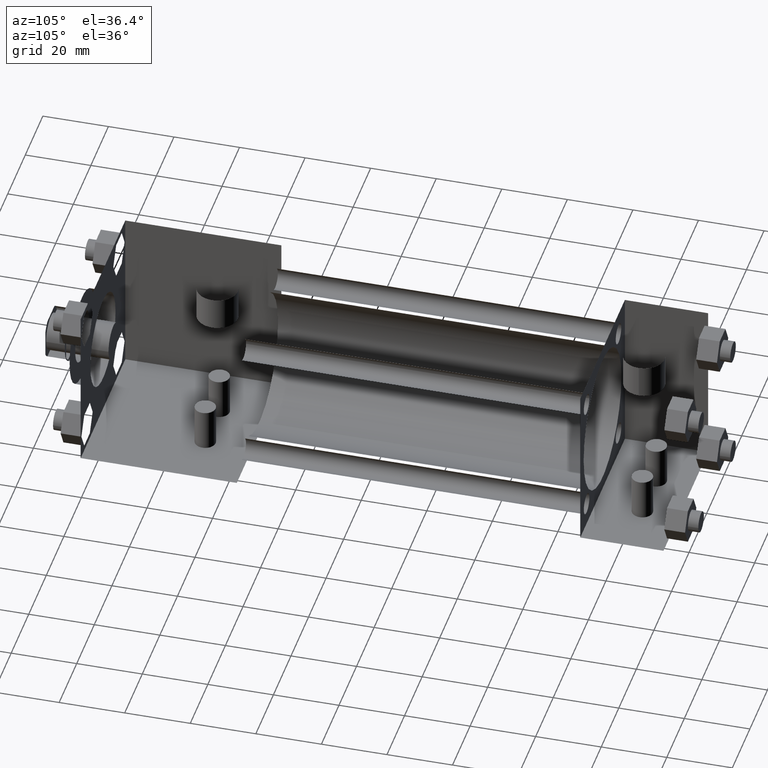
[diagram: clean part render]
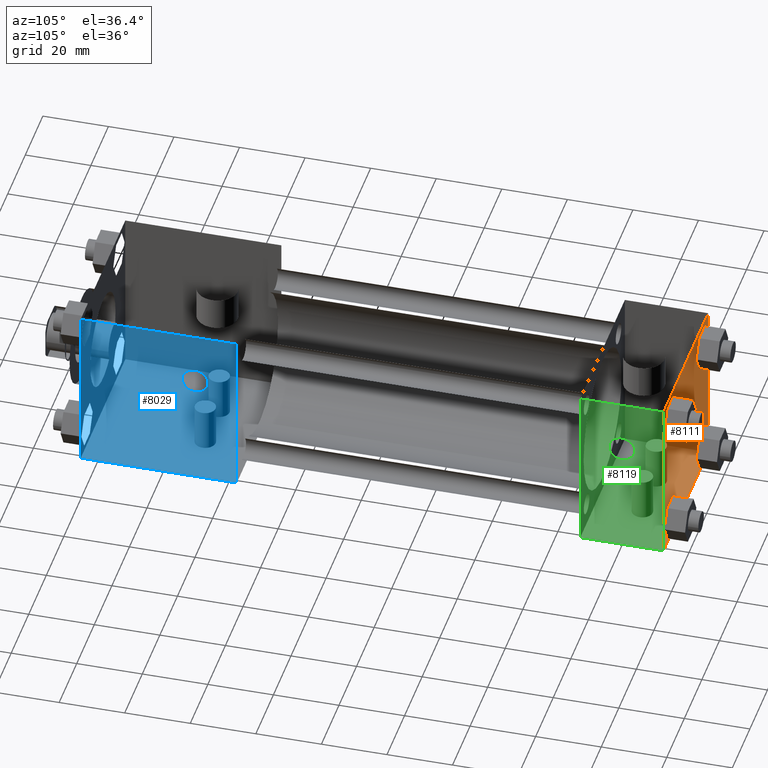
[diagram: same view with three faces highlighted in distinct colors, each labeled with its STEP entity id]
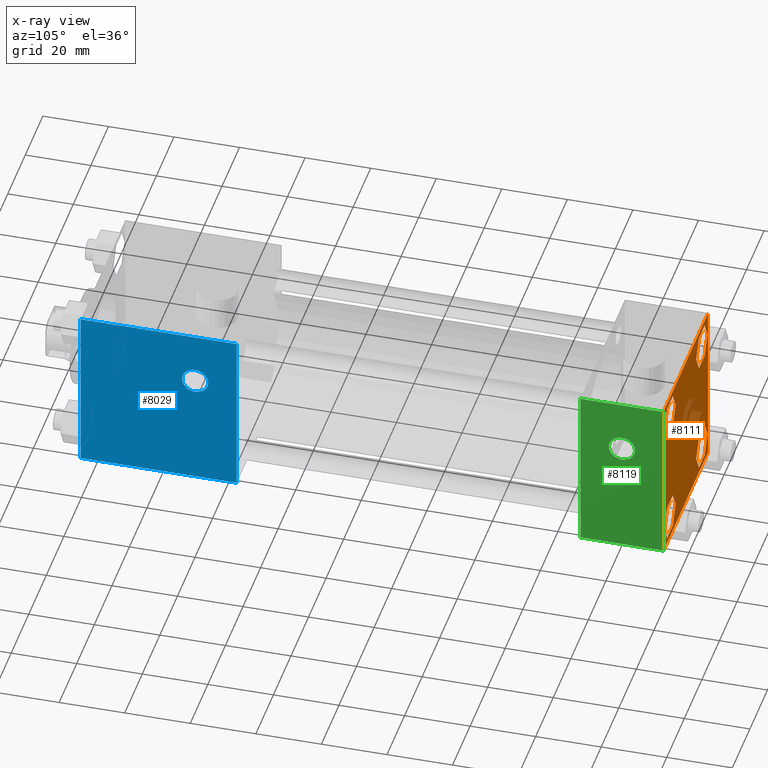
[diagram: x-ray of the same camera — body ghosted, the three highlighted faces saturated]
A machine part, auxiliary view with three faces highlighted in distinct colors.
The next image is the same camera in x-ray (body ghosted, the three faces saturated) — at least one of them is partly hidden behind the body in this view.
Their STEP definitions:

[orange] entity #8111 — the highlighted planar face has unit normal (0, -1, 0).
#4269=FACE_OUTER_BOUND('',#4274,.T.);
#4270=FACE_BOUND('',#4275,.T.);
#4271=FACE_BOUND('',#4276,.T.);
#4272=FACE_BOUND('',#4277,.T.);
#4273=FACE_BOUND('',#4278,.T.);
#4274=EDGE_LOOP('',(#4279,#4280,#4281,#4282,#4283,#4284));
#4275=EDGE_LOOP('',(#4327,#4328,#4329,#4330,#4331,#4332));
#4276=EDGE_LOOP('',(#4375,#4376,#4377,#4378,#4379,#4380));
#4277=EDGE_LOOP('',(#4423,#4424,#4425,#4426));
#4278=EDGE_LOOP('',(#4455,#4456,#4457,#4458,#4459,#4460));
#4279=ORIENTED_EDGE('',*,*,#4285,.F.);
#4280=ORIENTED_EDGE('',*,*,#4294,.F.);
#4281=ORIENTED_EDGE('',*,*,#4301,.F.);
#4282=ORIENTED_EDGE('',*,*,#4308,.F.);
#4283=ORIENTED_EDGE('',*,*,#4315,.F.);
#4284=ORIENTED_EDGE('',*,*,#4322,.F.);
#4285=EDGE_CURVE('',#4290,#4291,#4286,.T.);
#4286=LINE('',#4287,#4288);
#4287=CARTESIAN_POINT('',(1.495309347E+001,1.936750000E+002,2.371724574E+001));
#4288=VECTOR('',#4289,1.0E+000);
#4289=DIRECTION('',(4.9999999836129E-001,0.0E+000,8.66025404730548E-001));
#4290=VERTEX_POINT('',#4292);
#4291=VERTEX_POINT('',#4293);
#4292=CARTESIAN_POINT('',(1.174519677E+001,1.936750000E+002,1.816100000E+001));
#4293=CARTESIAN_POINT('',(1.495309347E+001,1.936750000E+002,2.371724574E+001));
#4294=EDGE_CURVE('',#4299,#4290,#4295,.T.);
#4295=LINE('',#4296,#4297);
#4296=CARTESIAN_POINT('',(1.495309347E+001,1.936750000E+002,1.260475426E+001));
#4297=VECTOR('',#4298,1.0E+000);
#4298=DIRECTION('',(-4.99999998361291E-001,0.0E+000,
   8.66025404730548E-001));
#4299=VERTEX_POINT('',#4300);
#4300=CARTESIAN_POINT('',(1.495309347E+001,1.936750000E+002,1.260475426E+001));
#4301=EDGE_CURVE('',#4306,#4299,#4302,.T.);
#4302=LINE('',#4303,#4304);
#4303=CARTESIAN_POINT('',(1.495309347E+001,1.936750000E+002,1.260475426E+001));
#4304=VECTOR('',#4305,1.0E+000);
#4305=DIRECTION('',(-1.0E+000,0.0E+000,0.0E+000));
#4306=VERTEX_POINT('',#4307);
#4307=CARTESIAN_POINT('',(2.136890653E+001,1.936750000E+002,1.260475426E+001));
#4308=EDGE_CURVE('',#4313,#4306,#4309,.T.);
#4309=LINE('',#4310,#4311);
#4310=CARTESIAN_POINT('',(2.457680323E+001,1.936750000E+002,1.816100000E+001));
#4311=VECTOR('',#4312,1.0E+000);
#4312=DIRECTION('',(-4.9999999836129E-001,0.0E+000,
   -8.66025404730549E-001));
#4313=VERTEX_POINT('',#4314);
#4314=CARTESIAN_POINT('',(2.457680323E+001,1.936750000E+002,1.816100000E+001));
#4315=EDGE_CURVE('',#4320,#4313,#4316,.T.);
#4316=LINE('',#4317,#4318);
#4317=CARTESIAN_POINT('',(2.457680323E+001,1.936750000E+002,1.816100000E+001));
#4318=VECTOR('',#4319,1.0E+000);
#4319=DIRECTION('',(4.9999999836129E-001,0.0E+000,-8.66025404730548E-001));
#4320=VERTEX_POINT('',#4321);
#4321=CARTESIAN_POINT('',(2.136890653E+001,1.936750000E+002,2.371724574E+001));
#4322=EDGE_CURVE('',#4291,#4320,#4323,.T.);
#4323=LINE('',#4324,#4325);
#4324=CARTESIAN_POINT('',(1.495309347E+001,1.936750000E+002,2.371724574E+001));
#4325=VECTOR('',#4326,1.0E+000);
#4326=DIRECTION('',(1.0E+000,0.0E+000,0.0E+000));
#4327=ORIENTED_EDGE('',*,*,#4333,.F.);
#4328=ORIENTED_EDGE('',*,*,#4342,.F.);
#4329=ORIENTED_EDGE('',*,*,#4349,.F.);
#4330=ORIENTED_EDGE('',*,*,#4356,.F.);
#4331=ORIENTED_EDGE('',*,*,#4363,.F.);
#4332=ORIENTED_EDGE('',*,*,#4370,.F.);
#4333=EDGE_CURVE('',#4338,#4339,#4334,.T.);
#4334=LINE('',#4335,#4336);
#4335=CARTESIAN_POINT('',(-2.136890653E+001,1.936750000E+002,2.371724574E+001));
#4336=VECTOR('',#4337,1.0E+000);
#4337=DIRECTION('',(4.9999999836129E-001,0.0E+000,8.66025404730548E-001));
#4338=VERTEX_POINT('',#4340);
#4339=VERTEX_POINT('',#4341);
#4340=CARTESIAN_POINT('',(-2.457680323E+001,1.936750000E+002,1.816100000E+001));
#4341=CARTESIAN_POINT('',(-2.136890653E+001,1.936750000E+002,2.371724574E+001));
#4342=EDGE_CURVE('',#4347,#4338,#4343,.T.);
#4343=LINE('',#4344,#4345);
#4344=CARTESIAN_POINT('',(-2.136890653E+001,1.936750000E+002,1.260475426E+001));
#4345=VECTOR('',#4346,1.0E+000);
#4346=DIRECTION('',(-4.99999998361291E-001,0.0E+000,
   8.66025404730548E-001));
#4347=VERTEX_POINT('',#4348);
#4348=CARTESIAN_POINT('',(-2.136890653E+001,1.936750000E+002,1.260475426E+001));
#4349=EDGE_CURVE('',#4354,#4347,#4350,.T.);
#4350=LINE('',#4351,#4352);
#4351=CARTESIAN_POINT('',(-2.136890653E+001,1.936750000E+002,1.260475426E+001));
#4352=VECTOR('',#4353,1.0E+000);
#4353=DIRECTION('',(-1.0E+000,0.0E+000,0.0E+000));
#4354=VERTEX_POINT('',#4355);
#4355=CARTESIAN_POINT('',(-1.495309347E+001,1.936750000E+002,1.260475426E+001));
#4356=EDGE_CURVE('',#4361,#4354,#4357,.T.);
#4357=LINE('',#4358,#4359);
#4358=CARTESIAN_POINT('',(-1.174519677E+001,1.936750000E+002,1.816100000E+001));
#4359=VECTOR('',#4360,1.0E+000);
#4360=DIRECTION('',(-4.9999999836129E-001,0.0E+000,
   -8.66025404730549E-001));
#4361=VERTEX_POINT('',#4362);
#4362=CARTESIAN_POINT('',(-1.174519677E+001,1.936750000E+002,1.816100000E+001));
#4363=EDGE_CURVE('',#4368,#4361,#4364,.T.);
#4364=LINE('',#4365,#4366);
#4365=CARTESIAN_POINT('',(-1.174519677E+001,1.936750000E+002,1.816100000E+001));
#4366=VECTOR('',#4367,1.0E+000);
#4367=DIRECTION('',(4.9999999836129E-001,0.0E+000,-8.66025404730548E-001));
#4368=VERTEX_POINT('',#4369);
#4369=CARTESIAN_POINT('',(-1.495309347E+001,1.936750000E+002,2.371724574E+001));
#4370=EDGE_CURVE('',#4339,#4368,#4371,.T.);
#4371=LINE('',#4372,#4373);
#4372=CARTESIAN_POINT('',(-2.136890653E+001,1.936750000E+002,2.371724574E+001));
#4373=VECTOR('',#4374,1.0E+000);
#4374=DIRECTION('',(1.0E+000,0.0E+000,0.0E+000));
#4375=ORIENTED_EDGE('',*,*,#4381,.F.);
#4376=ORIENTED_EDGE('',*,*,#4390,.F.);
#4377=ORIENTED_EDGE('',*,*,#4397,.F.);
#4378=ORIENTED_EDGE('',*,*,#4404,.F.);
#4379=ORIENTED_EDGE('',*,*,#4411,.F.);
#4380=ORIENTED_EDGE('',*,*,#4418,.F.);
#4381=EDGE_CURVE('',#4386,#4387,#4382,.T.);
#4382=LINE('',#4383,#4384);
#4383=CARTESIAN_POINT('',(-2.136890653E+001,1.936750000E+002,-1.260475426E+001));
#4384=VECTOR('',#4385,1.0E+000);
#4385=DIRECTION('',(4.9999999836129E-001,0.0E+000,8.66025404730549E-001));
#4386=VERTEX_POINT('',#4388);
#4387=VERTEX_POINT('',#4389);
#4388=CARTESIAN_POINT('',(-2.457680323E+001,1.936750000E+002,-1.816100000E+001));
#4389=CARTESIAN_POINT('',(-2.136890653E+001,1.936750000E+002,-1.260475426E+001));
#4390=EDGE_CURVE('',#4395,#4386,#4391,.T.);
#4391=LINE('',#4392,#4393);
#4392=CARTESIAN_POINT('',(-2.136890653E+001,1.936750000E+002,-2.371724574E+001));
#4393=VECTOR('',#4394,1.0E+000);
#4394=DIRECTION('',(-4.99999998361291E-001,0.0E+000,
   8.66025404730548E-001));
#4395=VERTEX_POINT('',#4396);
#4396=CARTESIAN_POINT('',(-2.136890653E+001,1.936750000E+002,-2.371724574E+001));
#4397=EDGE_CURVE('',#4402,#4395,#4398,.T.);
#4398=LINE('',#4399,#4400);
#4399=CARTESIAN_POINT('',(-2.136890653E+001,1.936750000E+002,-2.371724574E+001));
#4400=VECTOR('',#4401,1.0E+000);
#4401=DIRECTION('',(-1.0E+000,0.0E+000,0.0E+000));
#4402=VERTEX_POINT('',#4403);
#4403=CARTESIAN_POINT('',(-1.495309347E+001,1.936750000E+002,-2.371724574E+001));
#4404=EDGE_CURVE('',#4409,#4402,#4405,.T.);
#4405=LINE('',#4406,#4407);
#4406=CARTESIAN_POINT('',(-1.174519677E+001,1.936750000E+002,-1.816100000E+001));
#4407=VECTOR('',#4408,1.0E+000);
#4408=DIRECTION('',(-4.99999998361289E-001,0.0E+000,
   -8.66025404730549E-001));
#4409=VERTEX_POINT('',#4410);
#4410=CARTESIAN_POINT('',(-1.174519677E+001,1.936750000E+002,-1.816100000E+001));
#4411=EDGE_CURVE('',#4416,#4409,#4412,.T.);
#4412=LINE('',#4413,#4414);
#4413=CARTESIAN_POINT('',(-1.174519677E+001,1.936750000E+002,-1.816100000E+001));
#4414=VECTOR('',#4415,1.0E+000);
#4415=DIRECTION('',(4.9999999836129E-001,0.0E+000,-8.66025404730548E-001));
#4416=VERTEX_POINT('',#4417);
#4417=CARTESIAN_POINT('',(-1.495309347E+001,1.936750000E+002,-1.260475426E+001));
#4418=EDGE_CURVE('',#4387,#4416,#4419,.T.);
#4419=LINE('',#4420,#4421);
#4420=CARTESIAN_POINT('',(-2.136890653E+001,1.936750000E+002,-1.260475426E+001));
#4421=VECTOR('',#4422,1.0E+000);
#4422=DIRECTION('',(1.0E+000,0.0E+000,0.0E+000));
#4423=ORIENTED_EDGE('',*,*,#4427,.F.);
#4424=ORIENTED_EDGE('',*,*,#4436,.T.);
#4425=ORIENTED_EDGE('',*,*,#4443,.F.);
#4426=ORIENTED_EDGE('',*,*,#4450,.F.);
#4427=EDGE_CURVE('',#4432,#4433,#4428,.T.);
#4428=LINE('',#4429,#4430);
#4429=CARTESIAN_POINT('',(2.540000000E+001,1.936750000E+002,-2.540000000E+001));
#4430=VECTOR('',#4431,1.0E+000);
#4431=DIRECTION('',(0.0E+000,0.0E+000,1.0E+000));
#4432=VERTEX_POINT('',#4434);
#4433=VERTEX_POINT('',#4435);
#4434=CARTESIAN_POINT('',(2.540000000E+001,1.936750000E+002,-2.540000000E+001));
#4435=CARTESIAN_POINT('',(2.540000000E+001,1.936750000E+002,2.540000000E+001));
#4436=EDGE_CURVE('',#4432,#4441,#4437,.T.);
#4437=LINE('',#4438,#4439);
#4438=CARTESIAN_POINT('',(2.540000000E+001,1.936750000E+002,-2.540000000E+001));
#4439=VECTOR('',#4440,1.0E+000);
#4440=DIRECTION('',(-1.0E+000,0.0E+000,0.0E+000));
#4441=VERTEX_POINT('',#4442);
#4442=CARTESIAN_POINT('',(-2.540000000E+001,1.936750000E+002,-2.540000000E+001));
#4443=EDGE_CURVE('',#4448,#4441,#4444,.T.);
#4444=LINE('',#4445,#4446);
#4445=CARTESIAN_POINT('',(-2.540000000E+001,1.936750000E+002,2.540000000E+001));
#4446=VECTOR('',#4447,1.0E+000);
#4447=DIRECTION('',(0.0E+000,0.0E+000,-1.0E+000));
#4448=VERTEX_POINT('',#4449);
#4449=CARTESIAN_POINT('',(-2.540000000E+001,1.936750000E+002,2.540000000E+001));
#4450=EDGE_CURVE('',#4433,#4448,#4451,.T.);
#4451=LINE('',#4452,#4453);
#4452=CARTESIAN_POINT('',(2.540000000E+001,1.936750000E+002,2.540000000E+001));
#4453=VECTOR('',#4454,1.0E+000);
#4454=DIRECTION('',(-1.0E+000,0.0E+000,0.0E+000));
#4455=ORIENTED_EDGE('',*,*,#4461,.F.);
#4456=ORIENTED_EDGE('',*,*,#4470,.F.);
#4457=ORIENTED_EDGE('',*,*,#4477,.F.);
#4458=ORIENTED_EDGE('',*,*,#4484,.F.);
#4459=ORIENTED_EDGE('',*,*,#4491,.F.);
#4460=ORIENTED_EDGE('',*,*,#4498,.F.);
#4461=EDGE_CURVE('',#4466,#4467,#4462,.T.);
#4462=LINE('',#4463,#4464);
#4463=CARTESIAN_POINT('',(2.136890653E+001,1.936750000E+002,-2.371724574E+001));
#4464=VECTOR('',#4465,1.0E+000);
#4465=DIRECTION('',(-4.9999999836129E-001,0.0E+000,
   -8.66025404730549E-001));
#4466=VERTEX_POINT('',#4468);
#4467=VERTEX_POINT('',#4469);
#4468=CARTESIAN_POINT('',(2.457680323E+001,1.936750000E+002,-1.816100000E+001));
#4469=CARTESIAN_POINT('',(2.136890653E+001,1.936750000E+002,-2.371724574E+001));
#4470=EDGE_CURVE('',#4475,#4466,#4471,.T.);
#4471=LINE('',#4472,#4473);
#4472=CARTESIAN_POINT('',(2.136890653E+001,1.936750000E+002,-1.260475426E+001));
#4473=VECTOR('',#4474,1.0E+000);
#4474=DIRECTION('',(4.99999998361291E-001,0.0E+000,
   -8.66025404730548E-001));
#4475=VERTEX_POINT('',#4476);
#4476=CARTESIAN_POINT('',(2.136890653E+001,1.936750000E+002,-1.260475426E+001));
#4477=EDGE_CURVE('',#4482,#4475,#4478,.T.);
#4478=LINE('',#4479,#4480);
#4479=CARTESIAN_POINT('',(2.136890653E+001,1.936750000E+002,-1.260475426E+001));
#4480=VECTOR('',#4481,1.0E+000);
#4481=DIRECTION('',(1.0E+000,0.0E+000,0.0E+000));
#4482=VERTEX_POINT('',#4483);
#4483=CARTESIAN_POINT('',(1.495309347E+001,1.936750000E+002,-1.260475426E+001));
#4484=EDGE_CURVE('',#4489,#4482,#4485,.T.);
#4485=LINE('',#4486,#4487);
#4486=CARTESIAN_POINT('',(1.174519677E+001,1.936750000E+002,-1.816100000E+001));
#4487=VECTOR('',#4488,1.0E+000);
#4488=DIRECTION('',(4.99999998361289E-001,0.0E+000,8.66025404730549E-001));
#4489=VERTEX_POINT('',#4490);
#4490=CARTESIAN_POINT('',(1.174519677E+001,1.936750000E+002,-1.816100000E+001));
#4491=EDGE_CURVE('',#4496,#4489,#4492,.T.);
#4492=LINE('',#4493,#4494);
#4493=CARTESIAN_POINT('',(1.174519677E+001,1.936750000E+002,-1.816100000E+001));
#4494=VECTOR('',#4495,1.0E+000);
#4495=DIRECTION('',(-4.9999999836129E-001,0.0E+000,8.66025404730548E-001));
#4496=VERTEX_POINT('',#4497);
#4497=CARTESIAN_POINT('',(1.495309347E+001,1.936750000E+002,-2.371724574E+001));
#4498=EDGE_CURVE('',#4467,#4496,#4499,.T.);
#4499=LINE('',#4500,#4501);
#4500=CARTESIAN_POINT('',(2.136890653E+001,1.936750000E+002,-2.371724574E+001));
#4501=VECTOR('',#4502,1.0E+000);
#4502=DIRECTION('',(-1.0E+000,0.0E+000,0.0E+000));
#4503=PLANE('',#4504);
#4504=AXIS2_PLACEMENT_3D('',#4505,#4506,#4507);
#4505=CARTESIAN_POINT('',(2.540000000E+001,1.936750000E+002,-2.540000000E+001));
#4506=DIRECTION('',(0.0E+000,-1.0E+000,0.0E+000));
#4507=DIRECTION('',(0.0E+000,0.0E+000,-1.0E+000));
#8111=ADVANCED_FACE('',(#4269,#4270,#4271,#4272,#4273),#4503,.F.);

[blue] entity #8029 — the highlighted planar face has unit normal (1, 0, 0).
#1776=EDGE_CURVE('',#1782,#1782,#1777,.T.);
#1777=CIRCLE('',#1778,3.968750000E+000);
#1778=AXIS2_PLACEMENT_3D('',#1779,#1780,#1781);
#1779=CARTESIAN_POINT('',(2.540000000E+001,5.080000000E+001,9.525000000E+000));
#1780=DIRECTION('',(-1.0E+000,0.0E+000,0.0E+000));
#1781=DIRECTION('',(0.0E+000,0.0E+000,-1.0E+000));
#1782=VERTEX_POINT('',#1783);
#1783=CARTESIAN_POINT('',(2.540000000E+001,5.080000000E+001,5.556250000E+000));
#1958=VERTEX_POINT('',#1959);
#1959=CARTESIAN_POINT('',(2.540000000E+001,1.587500000E+001,2.540000000E+001));
#1960=EDGE_CURVE('',#1965,#1958,#1961,.T.);
#1961=LINE('',#1962,#1963);
#1962=CARTESIAN_POINT('',(2.540000000E+001,6.350000000E+001,2.540000000E+001));
#1963=VECTOR('',#1964,1.0E+000);
#1964=DIRECTION('',(0.0E+000,-1.0E+000,0.0E+000));
#1965=VERTEX_POINT('',#1966);
#1966=CARTESIAN_POINT('',(2.540000000E+001,6.350000000E+001,2.540000000E+001));
#1977=FACE_OUTER_BOUND('',#1979,.T.);
#1978=FACE_BOUND('',#1980,.T.);
#1979=EDGE_LOOP('',(#1981));
#1980=EDGE_LOOP('',(#1982,#1983,#1984,#1985));
#1981=ORIENTED_EDGE('',*,*,#1776,.T.);
#1982=ORIENTED_EDGE('',*,*,#1986,.F.);
#1983=ORIENTED_EDGE('',*,*,#1993,.F.);
#1984=ORIENTED_EDGE('',*,*,#2000,.T.);
#1985=ORIENTED_EDGE('',*,*,#1960,.T.);
#1986=EDGE_CURVE('',#1991,#1958,#1987,.T.);
#1987=LINE('',#1988,#1989);
#1988=CARTESIAN_POINT('',(2.540000000E+001,1.587500000E+001,-2.540000000E+001));
#1989=VECTOR('',#1990,1.0E+000);
#1990=DIRECTION('',(0.0E+000,0.0E+000,1.0E+000));
#1991=VERTEX_POINT('',#1992);
#1992=CARTESIAN_POINT('',(2.540000000E+001,1.587500000E+001,-2.540000000E+001));
#1993=EDGE_CURVE('',#1998,#1991,#1994,.T.);
#1994=LINE('',#1995,#1996);
#1995=CARTESIAN_POINT('',(2.540000000E+001,6.350000000E+001,-2.540000000E+001));
#1996=VECTOR('',#1997,1.0E+000);
#1997=DIRECTION('',(0.0E+000,-1.0E+000,0.0E+000));
#1998=VERTEX_POINT('',#1999);
#1999=CARTESIAN_POINT('',(2.540000000E+001,6.350000000E+001,-2.540000000E+001));
#2000=EDGE_CURVE('',#1998,#1965,#2001,.T.);
#2001=LINE('',#2002,#2003);
#2002=CARTESIAN_POINT('',(2.540000000E+001,6.350000000E+001,-2.540000000E+001));
#2003=VECTOR('',#2004,1.0E+000);
#2004=DIRECTION('',(0.0E+000,0.0E+000,1.0E+000));
#2005=PLANE('',#2006);
#2006=AXIS2_PLACEMENT_3D('',#2007,#2008,#2009);
#2007=CARTESIAN_POINT('',(2.540000000E+001,6.350000000E+001,-2.540000000E+001));
#2008=DIRECTION('',(1.0E+000,0.0E+000,0.0E+000));
#2009=DIRECTION('',(0.0E+000,0.0E+000,-1.0E+000));
#8029=ADVANCED_FACE('',(#1977,#1978),#2005,.T.);

[green] entity #8119 — the highlighted planar face has unit normal (1, 0, 0).
#4187=VERTEX_POINT('',#4189);
#4189=CARTESIAN_POINT('',(2.540000000E+001,1.682750000E+002,-2.540000000E+001));
#4191=EDGE_CURVE('',#4187,#4196,#4192,.T.);
#4192=LINE('',#4193,#4194);
#4193=CARTESIAN_POINT('',(2.540000000E+001,1.682750000E+002,-2.540000000E+001));
#4194=VECTOR('',#4195,1.0E+000);
#4195=DIRECTION('',(0.0E+000,0.0E+000,1.0E+000));
#4196=VERTEX_POINT('',#4197);
#4197=CARTESIAN_POINT('',(2.540000000E+001,1.682750000E+002,2.540000000E+001));
#4427=EDGE_CURVE('',#4432,#4433,#4428,.T.);
#4428=LINE('',#4429,#4430);
#4429=CARTESIAN_POINT('',(2.540000000E+001,1.936750000E+002,-2.540000000E+001));
#4430=VECTOR('',#4431,1.0E+000);
#4431=DIRECTION('',(0.0E+000,0.0E+000,1.0E+000));
#4432=VERTEX_POINT('',#4434);
#4433=VERTEX_POINT('',#4435);
#4434=CARTESIAN_POINT('',(2.540000000E+001,1.936750000E+002,-2.540000000E+001));
#4435=CARTESIAN_POINT('',(2.540000000E+001,1.936750000E+002,2.540000000E+001));
#4563=EDGE_CURVE('',#4432,#4187,#4564,.T.);
#4564=LINE('',#4565,#4566);
#4565=CARTESIAN_POINT('',(2.540000000E+001,1.936750000E+002,-2.540000000E+001));
#4566=VECTOR('',#4567,1.0E+000);
#4567=DIRECTION('',(0.0E+000,-1.0E+000,0.0E+000));
#4627=EDGE_CURVE('',#4433,#4196,#4628,.T.);
#4628=LINE('',#4629,#4630);
#4629=CARTESIAN_POINT('',(2.540000000E+001,1.936750000E+002,2.540000000E+001));
#4630=VECTOR('',#4631,1.0E+000);
#4631=DIRECTION('',(0.0E+000,-1.0E+000,0.0E+000));
#4659=FACE_OUTER_BOUND('',#4661,.T.);
#4660=FACE_BOUND('',#4662,.T.);
#4661=EDGE_LOOP('',(#4663));
#4662=EDGE_LOOP('',(#4672,#4673,#4674,#4675));
#4663=ORIENTED_EDGE('',*,*,#4664,.T.);
#4664=EDGE_CURVE('',#4670,#4670,#4665,.T.);
#4665=CIRCLE('',#4666,3.968750000E+000);
#4666=AXIS2_PLACEMENT_3D('',#4667,#4668,#4669);
#4667=CARTESIAN_POINT('',(2.540000000E+001,1.809750000E+002,9.525000000E+000));
#4668=DIRECTION('',(-1.0E+000,0.0E+000,0.0E+000));
#4669=DIRECTION('',(0.0E+000,0.0E+000,-1.0E+000));
#4670=VERTEX_POINT('',#4671);
#4671=CARTESIAN_POINT('',(2.540000000E+001,1.849437500E+002,9.525000000E+000));
#4672=ORIENTED_EDGE('',*,*,#4563,.F.);
#4673=ORIENTED_EDGE('',*,*,#4427,.T.);
#4674=ORIENTED_EDGE('',*,*,#4627,.T.);
#4675=ORIENTED_EDGE('',*,*,#4191,.F.);
#4676=PLANE('',#4677);
#4677=AXIS2_PLACEMENT_3D('',#4678,#4679,#4680);
#4678=CARTESIAN_POINT('',(2.540000000E+001,1.936750000E+002,-2.540000000E+001));
#4679=DIRECTION('',(1.0E+000,0.0E+000,0.0E+000));
#4680=DIRECTION('',(0.0E+000,0.0E+000,-1.0E+000));
#8119=ADVANCED_FACE('',(#4659,#4660),#4676,.T.);